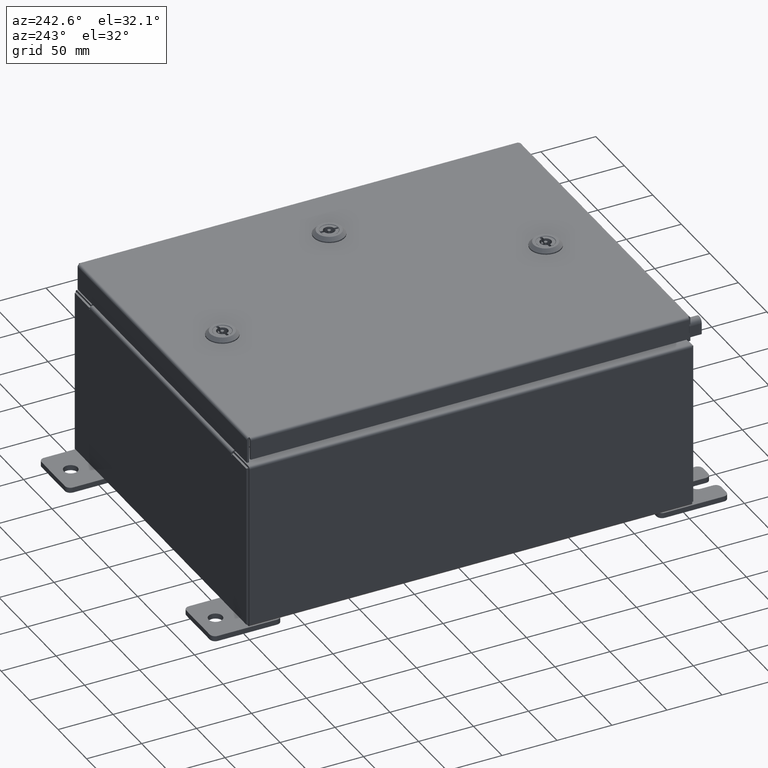
[diagram: clean part render]
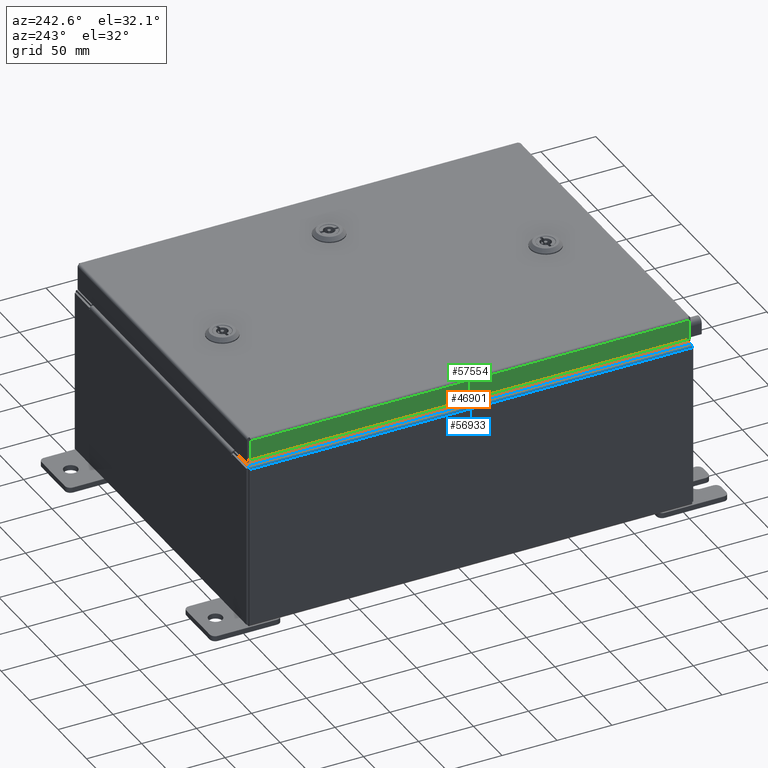
[diagram: same view with three faces highlighted in distinct colors, each labeled with its STEP entity id]
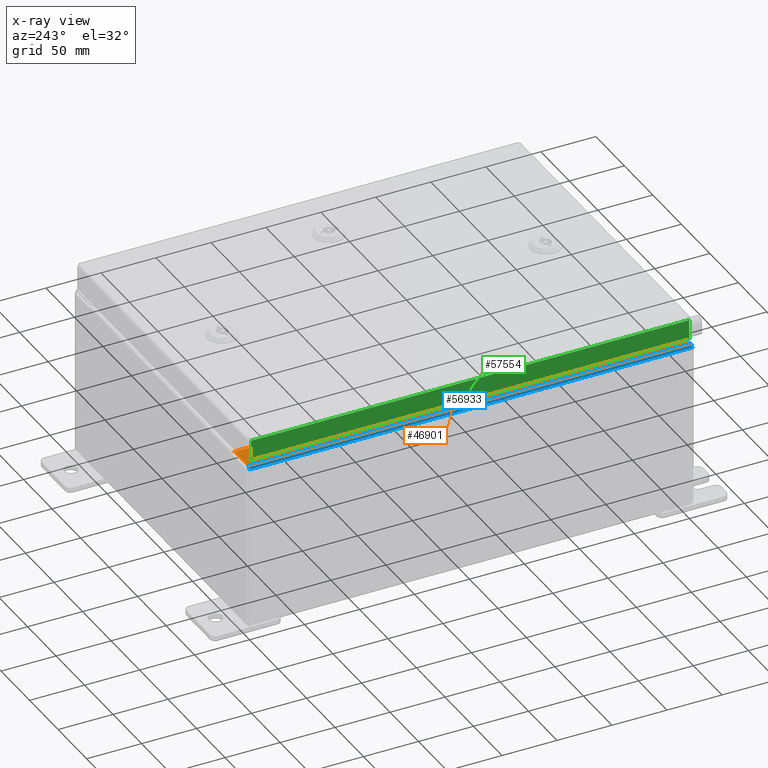
[diagram: x-ray of the same camera — body ghosted, the three highlighted faces saturated]
A machine part, auxiliary view with three faces highlighted in distinct colors.
The next image is the same camera in x-ray (body ghosted, the three faces saturated) — at least one of them is partly hidden behind the body in this view.
Their STEP definitions:

[orange] entity #46901 — the highlighted planar face has unit normal (0, 0, -1).
#314 = CARTESIAN_POINT ( 'NONE',  ( -4.949700000000022200, 6.881099999999996400, 5.925300000000008000 ) ) ;
#419 = CARTESIAN_POINT ( 'NONE',  ( -5.912300000000022300, 7.925299999999998200, 5.925300000000000000 ) ) ;
#596 = CARTESIAN_POINT ( 'NONE',  ( -4.949700000000022200, -6.881100000000000000, 5.925300000000007100 ) ) ;
#766 = CARTESIAN_POINT ( 'NONE',  ( -4.949700000000022200, 3.412319537238929100E-016, 5.925300000000007100 ) ) ;
#816 = DIRECTION ( 'NONE',  ( -1.000000000000000000, 0.0000000000000000000, -7.840482146637907500E-015 ) ) ;
#2022 = LINE ( 'NONE', #17163, #38494 ) ;
#2421 = ORIENTED_EDGE ( 'NONE', *, *, #46943, .T. ) ;
#2483 = ORIENTED_EDGE ( 'NONE', *, *, #30044, .F. ) ;
#3355 = CARTESIAN_POINT ( 'NONE',  ( -5.000050000000023000, -6.843750000000000000, 5.925300000000007100 ) ) ;
#3866 = LINE ( 'NONE', #58029, #15000 ) ;
#4168 = DIRECTION ( 'NONE',  ( 1.000000000000000000, 0.0000000000000000000, 0.0000000000000000000 ) ) ;
#4404 = EDGE_LOOP ( 'NONE', ( #51890, #30140, #35038, #40651, #2421, #60758, #2483, #47792, #8980, #45617, #18781, #44493 ) ) ;
#4648 = CIRCLE ( 'NONE', #6026, 0.01867500000000058700 ) ;
#5600 = VECTOR ( 'NONE', #52531, 39.37007874015748100 ) ;
#6002 = CARTESIAN_POINT ( 'NONE',  ( -5.000050000000023000, -6.881100000000000000, 5.925300000000007100 ) ) ;
#6026 = AXIS2_PLACEMENT_3D ( 'NONE', #61153, #32598, #4168 ) ;
#6581 = LINE ( 'NONE', #57218, #55743 ) ;
#8333 = VERTEX_POINT ( 'NONE', #47084 ) ;
#8553 = EDGE_CURVE ( 'NONE', #39230, #26484, #55252, .T. ) ;
#8980 = ORIENTED_EDGE ( 'NONE', *, *, #59975, .F. ) ;
#10009 = CARTESIAN_POINT ( 'NONE',  ( -5.000050000000023000, -6.881100000000000000, 5.925300000000008000 ) ) ;
#10527 = VERTEX_POINT ( 'NONE', #31990 ) ;
#10907 = LINE ( 'NONE', #33250, #60068 ) ;
#12594 = AXIS2_PLACEMENT_3D ( 'NONE', #48223, #29245, #816 ) ;
#14613 = VERTEX_POINT ( 'NONE', #26826 ) ;
#14690 = VERTEX_POINT ( 'NONE', #3355 ) ;
#14788 = EDGE_CURVE ( 'NONE', #42589, #51205, #10907, .T. ) ;
#15000 = VECTOR ( 'NONE', #24710, 39.37007874015748100 ) ;
#16497 = FACE_OUTER_BOUND ( 'NONE', #4404, .T. ) ;
#16734 = VECTOR ( 'NONE', #33988, 39.37007874015748100 ) ;
#17163 = CARTESIAN_POINT ( 'NONE',  ( -4.671802251948553500E-014, 7.925299999999998200, 5.925300000000046200 ) ) ;
#17235 = VECTOR ( 'NONE', #57318, 39.37007874015748100 ) ;
#18103 = CARTESIAN_POINT ( 'NONE',  ( -5.000050000000023000, -6.862424999999999100, 5.925300000000008000 ) ) ;
#18654 = EDGE_CURVE ( 'NONE', #34170, #48549, #6581, .T. ) ;
#18781 = ORIENTED_EDGE ( 'NONE', *, *, #14788, .F. ) ;
#19122 = DIRECTION ( 'NONE',  ( 1.000000000000000000, 0.0000000000000000000, 0.0000000000000000000 ) ) ;
#19216 = EDGE_CURVE ( 'NONE', #14690, #26649, #54986, .T. ) ;
#20704 = CARTESIAN_POINT ( 'NONE',  ( -4.962700000000023000, -6.843750000000000000, 5.925300000000008000 ) ) ;
#21302 = LINE ( 'NONE', #24868, #32385 ) ;
#22383 = LINE ( 'NONE', #20704, #36524 ) ;
#22895 = DIRECTION ( 'NONE',  ( 1.000000000000000000, 0.0000000000000000000, 0.0000000000000000000 ) ) ;
#23619 = CARTESIAN_POINT ( 'NONE',  ( -5.000050000000023000, 6.881099999999996400, 5.925300000000007100 ) ) ;
#23880 = DIRECTION ( 'NONE',  ( 6.893992640440727600E-017, 1.000000000000000000, 5.405222621642865100E-031 ) ) ;
#24710 = DIRECTION ( 'NONE',  ( 1.000000000000000000, 0.0000000000000000000, 7.840482146637907500E-015 ) ) ;
#24868 = CARTESIAN_POINT ( 'NONE',  ( -4.962700000000023000, 6.843750000000000000, 5.925300000000008000 ) ) ;
#26484 = VERTEX_POINT ( 'NONE', #23619 ) ;
#26649 = VERTEX_POINT ( 'NONE', #6002 ) ;
#26826 = CARTESIAN_POINT ( 'NONE',  ( -5.912300000000023200, -7.925300000000000000, 5.925300000000000000 ) ) ;
#27298 = EDGE_CURVE ( 'NONE', #14613, #57206, #42658, .T. ) ;
#28396 = EDGE_CURVE ( 'NONE', #26484, #42589, #4648, .T. ) ;
#29245 = DIRECTION ( 'NONE',  ( 7.840482146637907500E-015, 0.0000000000000000000, -1.000000000000000000 ) ) ;
#29955 = VECTOR ( 'NONE', #48019, 39.37007874015748100 ) ;
#30044 = EDGE_CURVE ( 'NONE', #26649, #48549, #57734, .T. ) ;
#30140 = ORIENTED_EDGE ( 'NONE', *, *, #55532, .T. ) ;
#31990 = CARTESIAN_POINT ( 'NONE',  ( -4.949700000000022200, 7.925299999999998200, 5.925300000000007100 ) ) ;
#32385 = VECTOR ( 'NONE', #44005, 39.37007874015748100 ) ;
#32598 = DIRECTION ( 'NONE',  ( -7.840482146637907500E-015, -0.0000000000000000000, 1.000000000000000000 ) ) ;
#33250 = CARTESIAN_POINT ( 'NONE',  ( -5.000050000000023000, 6.843749999999996400, 5.925300000000008000 ) ) ;
#33837 = PLANE ( 'NONE',  #12594 ) ;
#33988 = DIRECTION ( 'NONE',  ( 6.893992640440727600E-017, 1.000000000000000000, 5.405222621642865100E-031 ) ) ;
#34170 = VERTEX_POINT ( 'NONE', #34355 ) ;
#34355 = CARTESIAN_POINT ( 'NONE',  ( -4.949700000000023100, -7.925300000000000000, 5.925300000000007100 ) ) ;
#35038 = ORIENTED_EDGE ( 'NONE', *, *, #53113, .T. ) ;
#35843 = CARTESIAN_POINT ( 'NONE',  ( -5.912300000000023200, 7.925299999999998200, 5.925299999999999100 ) ) ;
#36524 = VECTOR ( 'NONE', #49220, 39.37007874015748100 ) ;
#38494 = VECTOR ( 'NONE', #50490, 39.37007874015748100 ) ;
#39167 = CARTESIAN_POINT ( 'NONE',  ( -5.000050000000023000, 6.843749999999996400, 5.925300000000007100 ) ) ;
#39230 = VERTEX_POINT ( 'NONE', #60153 ) ;
#40651 = ORIENTED_EDGE ( 'NONE', *, *, #27298, .F. ) ;
#41157 = AXIS2_PLACEMENT_3D ( 'NONE', #18103, #51443, #22895 ) ;
#42589 = VERTEX_POINT ( 'NONE', #39167 ) ;
#42658 = LINE ( 'NONE', #419, #29955 ) ;
#44005 = DIRECTION ( 'NONE',  ( -0.0000000000000000000, -1.000000000000000000, -0.0000000000000000000 ) ) ;
#44493 = ORIENTED_EDGE ( 'NONE', *, *, #28396, .F. ) ;
#45617 = ORIENTED_EDGE ( 'NONE', *, *, #54403, .F. ) ;
#46901 = ADVANCED_FACE ( 'NONE', ( #16497 ), #33837, .F. ) ;
#46943 = EDGE_CURVE ( 'NONE', #14613, #34170, #3866, .T. ) ;
#47084 = CARTESIAN_POINT ( 'NONE',  ( -4.962700000000023000, -6.843750000000000000, 5.925300000000008000 ) ) ;
#47131 = CARTESIAN_POINT ( 'NONE',  ( -4.962700000000023000, 6.843749999999996400, 5.925300000000008000 ) ) ;
#47792 = ORIENTED_EDGE ( 'NONE', *, *, #19216, .F. ) ;
#48019 = DIRECTION ( 'NONE',  ( 6.893992640440775600E-017, 1.000000000000000000, 5.405222621642902700E-031 ) ) ;
#48223 = CARTESIAN_POINT ( 'NONE',  ( -4.671802251948553500E-014, 0.0000000000000000000, 5.925300000000046200 ) ) ;
#48549 = VERTEX_POINT ( 'NONE', #596 ) ;
#49220 = DIRECTION ( 'NONE',  ( -1.000000000000000000, 0.0000000000000000000, 0.0000000000000000000 ) ) ;
#50490 = DIRECTION ( 'NONE',  ( -1.000000000000000000, -7.721746602347052400E-032, -7.840482146637907500E-015 ) ) ;
#51205 = VERTEX_POINT ( 'NONE', #47131 ) ;
#51443 = DIRECTION ( 'NONE',  ( -7.840482146637907500E-015, -0.0000000000000000000, 1.000000000000000000 ) ) ;
#51890 = ORIENTED_EDGE ( 'NONE', *, *, #8553, .F. ) ;
#52531 = DIRECTION ( 'NONE',  ( 1.000000000000000000, -2.170286390199955400E-014, 0.0000000000000000000 ) ) ;
#53113 = EDGE_CURVE ( 'NONE', #10527, #57206, #2022, .T. ) ;
#53295 = LINE ( 'NONE', #766, #16734 ) ;
#54403 = EDGE_CURVE ( 'NONE', #51205, #8333, #21302, .T. ) ;
#54986 = CIRCLE ( 'NONE', #41157, 0.01867500000000058700 ) ;
#55252 = LINE ( 'NONE', #314, #17235 ) ;
#55532 = EDGE_CURVE ( 'NONE', #39230, #10527, #53295, .T. ) ;
#55743 = VECTOR ( 'NONE', #23880, 39.37007874015748100 ) ;
#57206 = VERTEX_POINT ( 'NONE', #35843 ) ;
#57218 = CARTESIAN_POINT ( 'NONE',  ( -4.949700000000022200, 3.412319537238929100E-016, 5.925300000000007100 ) ) ;
#57318 = DIRECTION ( 'NONE',  ( -1.000000000000000000, 0.0000000000000000000, 0.0000000000000000000 ) ) ;
#57734 = LINE ( 'NONE', #10009, #5600 ) ;
#58029 = CARTESIAN_POINT ( 'NONE',  ( -4.671802251948553500E-014, -7.925300000000000000, 5.925300000000046200 ) ) ;
#59975 = EDGE_CURVE ( 'NONE', #8333, #14690, #22383, .T. ) ;
#60068 = VECTOR ( 'NONE', #19122, 39.37007874015748100 ) ;
#60153 = CARTESIAN_POINT ( 'NONE',  ( -4.949700000000022200, 6.881099999999996400, 5.925300000000007100 ) ) ;
#60758 = ORIENTED_EDGE ( 'NONE', *, *, #18654, .T. ) ;
#61153 = CARTESIAN_POINT ( 'NONE',  ( -5.000050000000023000, 6.862424999999996400, 5.925300000000008000 ) ) ;

[blue] entity #56933 — the highlighted cylindrical surface (edge-blend (fillet) strip) has radius 2.2276 mm, axis along (-0, -1, -0).
#419 = CARTESIAN_POINT ( 'NONE',  ( -5.912300000000022300, 7.925299999999998200, 5.925300000000000000 ) ) ;
#1424 = DIRECTION ( 'NONE',  ( 0.0000000000000000000, 1.000000000000000000, 0.0000000000000000000 ) ) ;
#4308 = EDGE_CURVE ( 'NONE', #14613, #41468, #40909, .T. ) ;
#4770 = CYLINDRICAL_SURFACE ( 'NONE', #46310, 0.08770000000000026400 ) ;
#4974 = DIRECTION ( 'NONE',  ( -0.0000000000000000000, -1.000000000000000000, -0.0000000000000000000 ) ) ;
#6220 = EDGE_CURVE ( 'NONE', #41468, #40020, #55008, .T. ) ;
#8363 = AXIS2_PLACEMENT_3D ( 'NONE', #56812, #4974, #23449 ) ;
#13441 = CARTESIAN_POINT ( 'NONE',  ( -6.000000000000023100, -7.925300000000000000, 5.837599999999999200 ) ) ;
#14613 = VERTEX_POINT ( 'NONE', #26826 ) ;
#15077 = DIRECTION ( 'NONE',  ( -0.0000000000000000000, -1.000000000000000000, -0.0000000000000000000 ) ) ;
#17550 = EDGE_CURVE ( 'NONE', #40020, #57206, #39424, .T. ) ;
#23449 = DIRECTION ( 'NONE',  ( 0.0000000000000000000, 0.0000000000000000000, -1.000000000000000000 ) ) ;
#25903 = ORIENTED_EDGE ( 'NONE', *, *, #4308, .F. ) ;
#26741 = AXIS2_PLACEMENT_3D ( 'NONE', #29849, #1424, #34653 ) ;
#26826 = CARTESIAN_POINT ( 'NONE',  ( -5.912300000000023200, -7.925300000000000000, 5.925300000000000000 ) ) ;
#27298 = EDGE_CURVE ( 'NONE', #14613, #57206, #42658, .T. ) ;
#28300 = EDGE_LOOP ( 'NONE', ( #31207, #25903, #40205, #31723 ) ) ;
#29849 = CARTESIAN_POINT ( 'NONE',  ( -5.912300000000023200, 7.925299999999998200, 5.837599999999999200 ) ) ;
#29955 = VECTOR ( 'NONE', #48019, 39.37007874015748100 ) ;
#30011 = FACE_OUTER_BOUND ( 'NONE', #28300, .T. ) ;
#30647 = DIRECTION ( 'NONE',  ( 0.0000000000000000000, 1.000000000000000000, 0.0000000000000000000 ) ) ;
#31207 = ORIENTED_EDGE ( 'NONE', *, *, #6220, .F. ) ;
#31723 = ORIENTED_EDGE ( 'NONE', *, *, #17550, .F. ) ;
#32682 = CARTESIAN_POINT ( 'NONE',  ( -6.000000000000022200, 7.925299999999998200, 5.837599999999999200 ) ) ;
#34653 = DIRECTION ( 'NONE',  ( 0.0000000000000000000, 0.0000000000000000000, -1.000000000000000000 ) ) ;
#35843 = CARTESIAN_POINT ( 'NONE',  ( -5.912300000000023200, 7.925299999999998200, 5.925299999999999100 ) ) ;
#39424 = CIRCLE ( 'NONE', #26741, 0.08770000000000026400 ) ;
#40020 = VERTEX_POINT ( 'NONE', #32682 ) ;
#40205 = ORIENTED_EDGE ( 'NONE', *, *, #27298, .T. ) ;
#40909 = CIRCLE ( 'NONE', #8363, 0.08770000000000026400 ) ;
#41468 = VERTEX_POINT ( 'NONE', #13441 ) ;
#42658 = LINE ( 'NONE', #419, #29955 ) ;
#43589 = CARTESIAN_POINT ( 'NONE',  ( -5.912300000000023200, -7.925300000000000900, 5.837599999999999200 ) ) ;
#44409 = DIRECTION ( 'NONE',  ( -1.245996804407870000E-014, 0.0000000000000000000, 1.000000000000000000 ) ) ;
#46310 = AXIS2_PLACEMENT_3D ( 'NONE', #43589, #15077, #44409 ) ;
#48019 = DIRECTION ( 'NONE',  ( 6.893992640440775600E-017, 1.000000000000000000, 5.405222621642902700E-031 ) ) ;
#55008 = LINE ( 'NONE', #59230, #56501 ) ;
#56501 = VECTOR ( 'NONE', #30647, 39.37007874015748100 ) ;
#56812 = CARTESIAN_POINT ( 'NONE',  ( -5.912300000000023200, -7.925300000000000000, 5.837599999999999200 ) ) ;
#56933 = ADVANCED_FACE ( 'NONE', ( #30011 ), #4770, .T. ) ;
#57206 = VERTEX_POINT ( 'NONE', #35843 ) ;
#59230 = CARTESIAN_POINT ( 'NONE',  ( -6.000000000000023100, -7.925300000000000900, 5.837599999999999200 ) ) ;

[green] entity #57554 — the highlighted planar face has unit normal (1, 0, -0).
#3007 = EDGE_CURVE ( 'NONE', #26344, #7988, #13437, .T. ) ;
#7988 = VERTEX_POINT ( 'NONE', #21340 ) ;
#8018 = DIRECTION ( 'NONE',  ( -3.034122441942816500E-015, 6.982962677686265900E-015, -1.000000000000000000 ) ) ;
#11805 = VERTEX_POINT ( 'NONE', #42888 ) ;
#12041 = AXIS2_PLACEMENT_3D ( 'NONE', #14283, #47584, #19067 ) ;
#13437 = LINE ( 'NONE', #55640, #26095 ) ;
#14238 = CARTESIAN_POINT ( 'NONE',  ( -5.937500000000000900, 7.848657864376270300, -0.08770000000000004200 ) ) ;
#14283 = CARTESIAN_POINT ( 'NONE',  ( -5.937500000000000900, -2.170089081965699700E-030, 1.827591565504705700E-014 ) ) ;
#17373 = CARTESIAN_POINT ( 'NONE',  ( -5.937500000000000900, -7.848657864376269400, -0.08770000000000007000 ) ) ;
#19067 = DIRECTION ( 'NONE',  ( -3.034122441942816500E-015, 0.0000000000000000000, -1.000000000000000000 ) ) ;
#19560 = VECTOR ( 'NONE', #8018, 39.37007874015748100 ) ;
#21340 = CARTESIAN_POINT ( 'NONE',  ( -5.937500000000002700, -7.848657864376263200, -0.7949999999999996000 ) ) ;
#22517 = VECTOR ( 'NONE', #38286, 39.37007874015748100 ) ;
#23861 = EDGE_LOOP ( 'NONE', ( #55431, #50558, #51717, #38723 ) ) ;
#25744 = CARTESIAN_POINT ( 'NONE',  ( -5.937500000000002700, -7.937500000000000000, -0.7949999999999997100 ) ) ;
#26095 = VECTOR ( 'NONE', #50569, 39.37007874015748100 ) ;
#26344 = VERTEX_POINT ( 'NONE', #17373 ) ;
#27750 = EDGE_CURVE ( 'NONE', #61035, #11805, #30659, .T. ) ;
#29948 = VECTOR ( 'NONE', #30481, 39.37007874015748100 ) ;
#30481 = DIRECTION ( 'NONE',  ( 4.379057701015054300E-047, 1.000000000000000000, 1.204594390907076900E-016 ) ) ;
#30659 = LINE ( 'NONE', #36515, #19560 ) ;
#32866 = EDGE_CURVE ( 'NONE', #61035, #26344, #50858, .T. ) ;
#33202 = PLANE ( 'NONE',  #12041 ) ;
#33478 = CARTESIAN_POINT ( 'NONE',  ( -5.937500000000000900, -7.937500000000000000, -0.08770000000000004200 ) ) ;
#36515 = CARTESIAN_POINT ( 'NONE',  ( -5.937500000000000900, 7.848657864376269400, 7.308280059191535900E-014 ) ) ;
#38286 = DIRECTION ( 'NONE',  ( 3.654886874889599300E-031, -1.000000000000000000, -1.077392013397602500E-045 ) ) ;
#38723 = ORIENTED_EDGE ( 'NONE', *, *, #3007, .F. ) ;
#42888 = CARTESIAN_POINT ( 'NONE',  ( -5.937500000000002700, 7.848657864376274800, -0.7949999999999978200 ) ) ;
#45476 = EDGE_CURVE ( 'NONE', #7988, #11805, #56849, .T. ) ;
#47584 = DIRECTION ( 'NONE',  ( 1.000000000000000000, 3.654886874889598900E-031, -3.034122441942816500E-015 ) ) ;
#50154 = FACE_OUTER_BOUND ( 'NONE', #23861, .T. ) ;
#50558 = ORIENTED_EDGE ( 'NONE', *, *, #27750, .T. ) ;
#50569 = DIRECTION ( 'NONE',  ( -3.034122441942816500E-015, 6.982962677686265900E-015, -1.000000000000000000 ) ) ;
#50858 = LINE ( 'NONE', #33478, #22517 ) ;
#51717 = ORIENTED_EDGE ( 'NONE', *, *, #45476, .F. ) ;
#55431 = ORIENTED_EDGE ( 'NONE', *, *, #32866, .F. ) ;
#55640 = CARTESIAN_POINT ( 'NONE',  ( -5.937500000000000900, -7.848657864376268600, -0.07469999999999976700 ) ) ;
#56849 = LINE ( 'NONE', #25744, #29948 ) ;
#57554 = ADVANCED_FACE ( 'NONE', ( #50154 ), #33202, .F. ) ;
#61035 = VERTEX_POINT ( 'NONE', #14238 ) ;